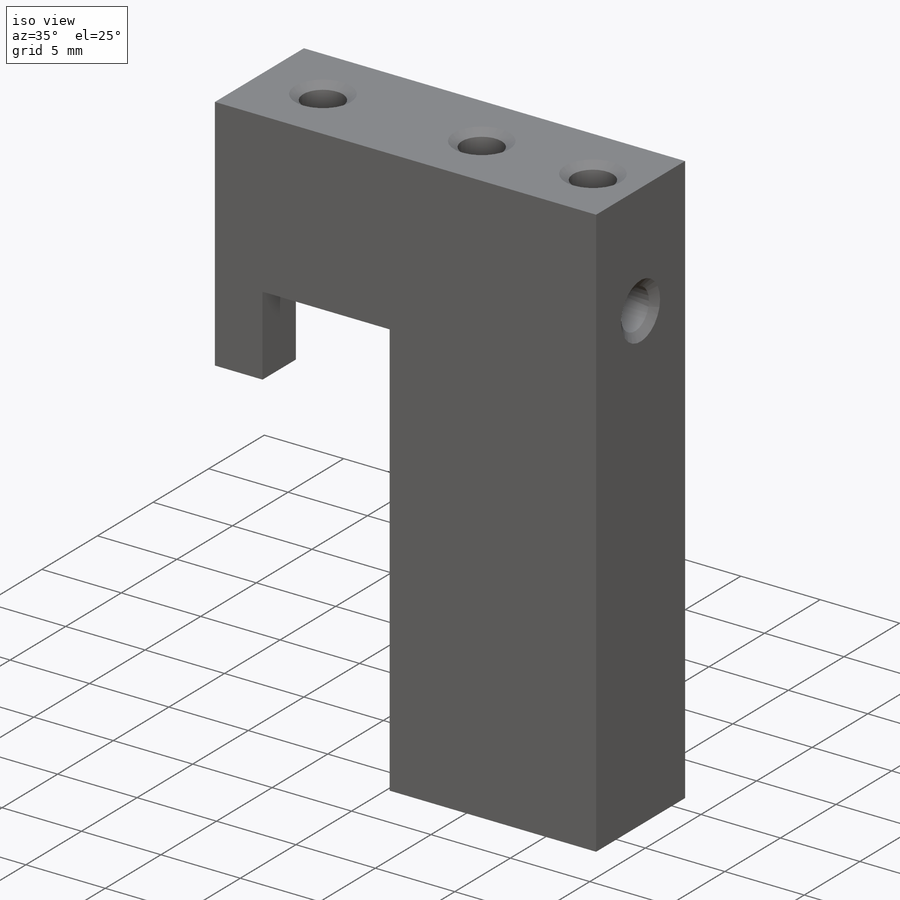
[diagram: iso view]
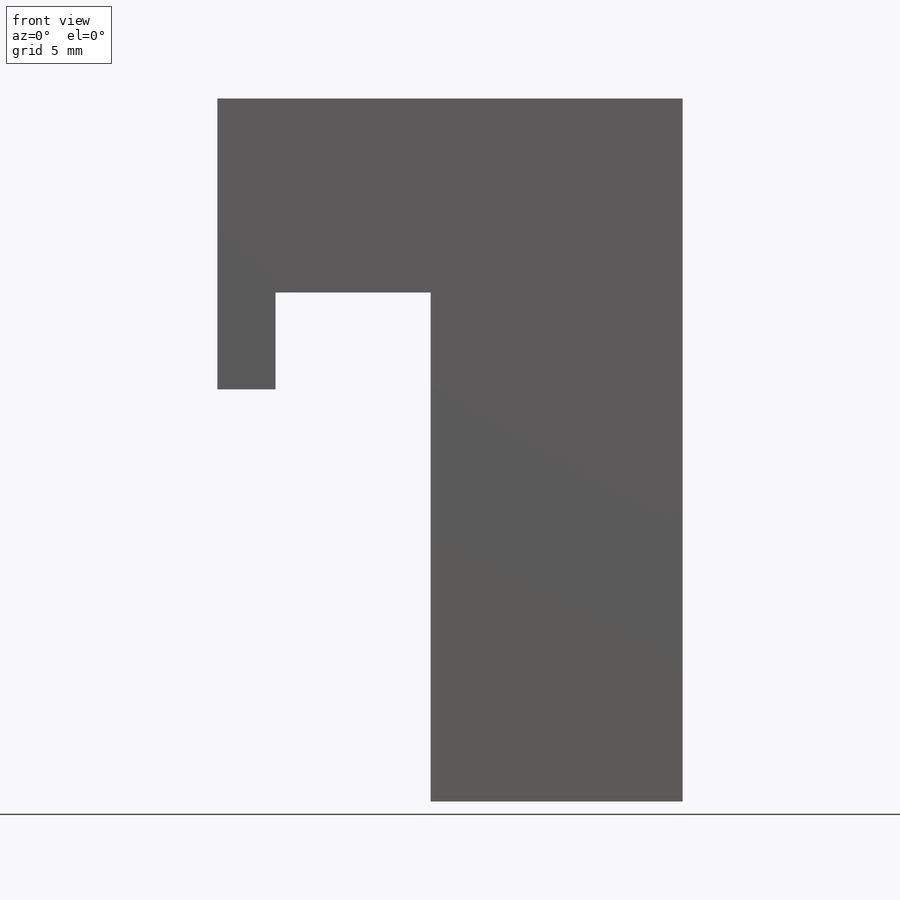
[diagram: front view]
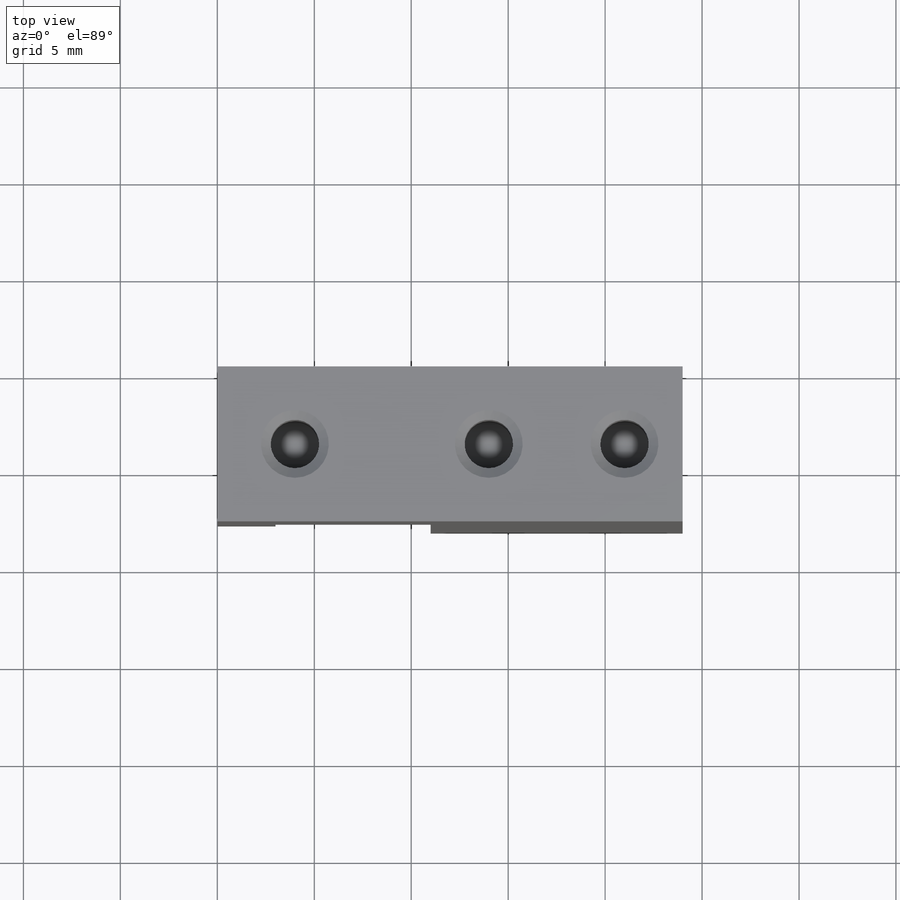
[diagram: top view]
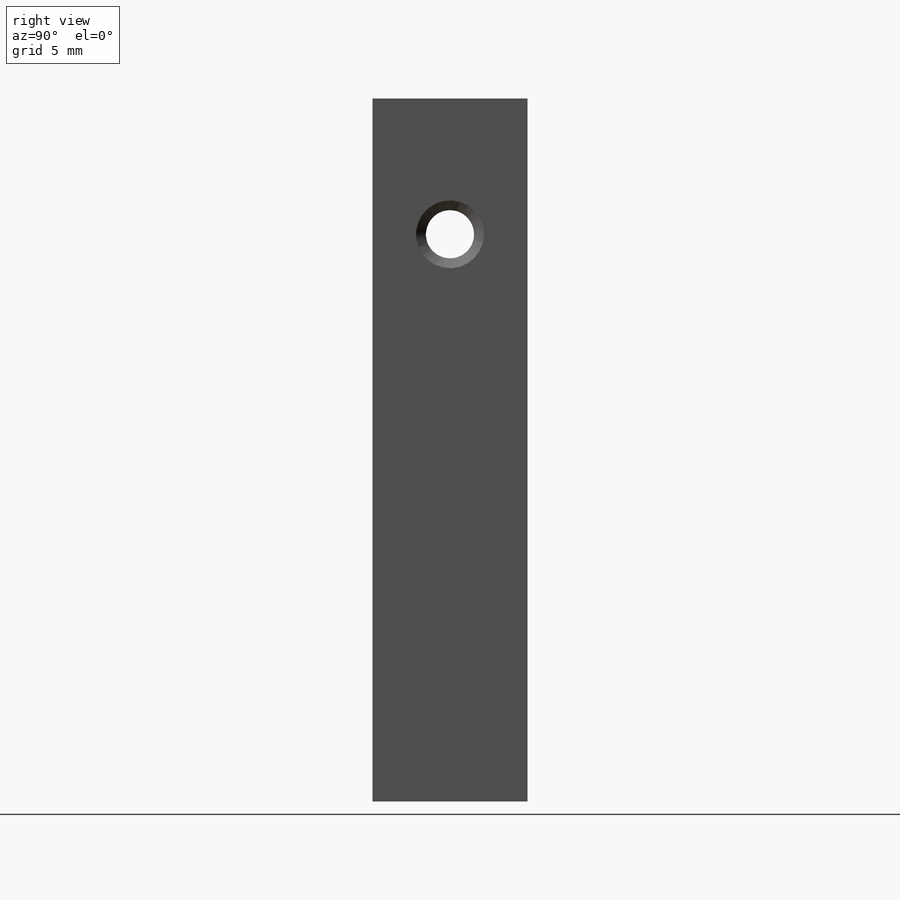
[diagram: right view]
SOLIDWORKS PART (.sldprt)
format: sldprt  version: not decoded by parser v0  size: 379,392 bytes
history: native  units: mm
features: thread x6, cut_extrude x3, hole x3, material x2, plane x1, sketch x1, extrude x1, chamfer x1 + 3 further entries (+39 scaffold rows collapsed)
feature tree (60):
  scaffold x39  (default folders/planes/origin — collapsed)
  material  "2024-T4"
  material  "pubOPTISFACEATTRIBUTEDEF"
  plane  "Спереди"
  sketch  "Эскиз1"  dims[c1.D1=~31.172727mm c2.D1=24.0mm c2.D2=36.25mm]
  extrude  "Бобышка-Вытянуть1"  Depth=8mm
  cut_extrude  "Вырез-Вытянуть1"  [1 undecoded]
  cut_extrude  "Вырез-Вытянуть2"  Depth=6mm
  hole  "Отверстие обработанное метчиком M31"  [1 undecoded]
  "Эскиз4"  4=25.4mm Диаметр сверла=2.5mm Глубина сверла=10.5mm Диаметр передней зенковки=3.2mm Угол передней зенковки=110deg Угол заточки сверла=118deg
  thread  "Отверстие резьбы1"  Diameter=8mm  [1 undecoded]
  thread  "Отверстие резьбы6"  Diameter=8mm  [1 undecoded]
  hole  "Отверстие обработанное метчиком M32"  [1 undecoded]
  thread  "Отверстие резьбы2"  Diameter=8mm  [1 undecoded]
  "Эскиз6"  4=25.4mm Диаметр проходного сверла=2.5mm Глубина проходного сверла=24mm Диаметр передней зенковки=3.5mm Угол передней зенковки=110deg Диаметр задней зенковки=3.5mm Угол задней зенковки=110deg
  hole  "Отверстие обработанное метчиком M33"  [1 undecoded]
  thread  "Отверстие резьбы3"  Diameter=6mm  [1 undecoded]
  thread  "Отверстие резьбы4"  Diameter=6mm  [1 undecoded]
  thread  "Отверстие резьбы5"  Diameter=6mm  [1 undecoded]
  "Эскиз8"  4=25.4mm Диаметр сверла=2.5mm Глубина сверла=7mm Диаметр передней зенковки=3.5mm Угол передней зенковки=110deg Угол заточки сверла=118deg
  chamfer  "Фаска1"  Distance=4.5mm Angle=30deg
  cut_extrude  "Вырез-Вытянуть4"  Depth=3mm
decode coverage: 11 of 15 modeling features carry decoded parameters; 3 rows unclassified (native names shown)
note: ~ marks probable driven/reference dimensions
note: 10 parameter values undecoded
summary: no parameter record found for 4 features
note: suppression state not decoded; provenance and decode notes live in map.json
